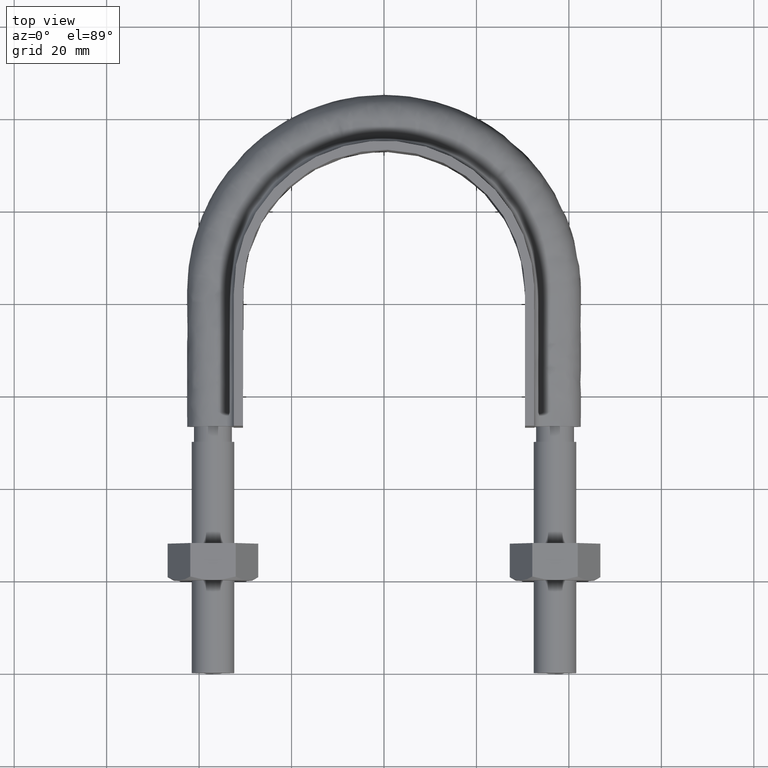
[diagram: clean part render]
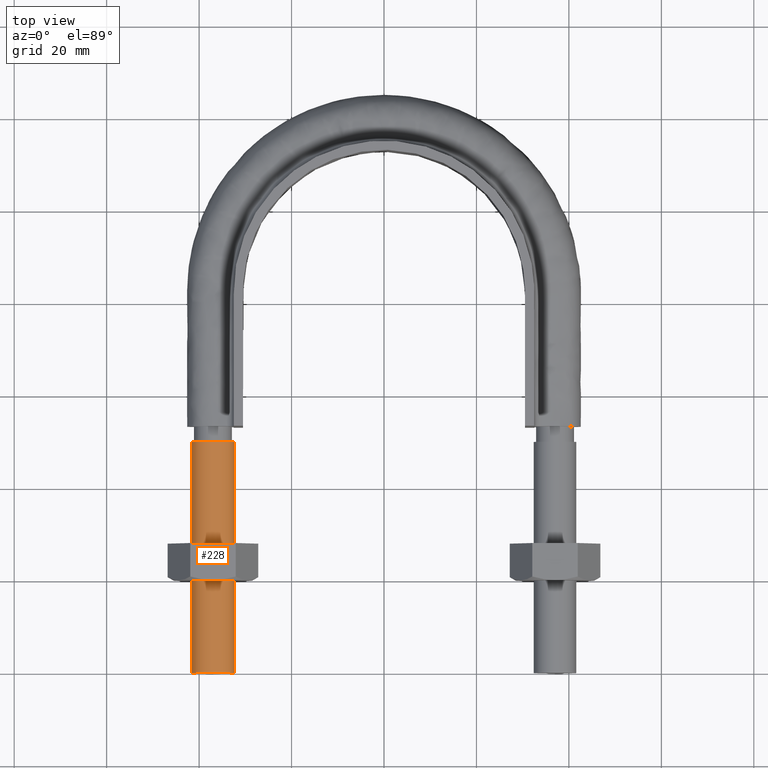
[diagram: same view with one face highlighted and labeled with its STEP entity id]
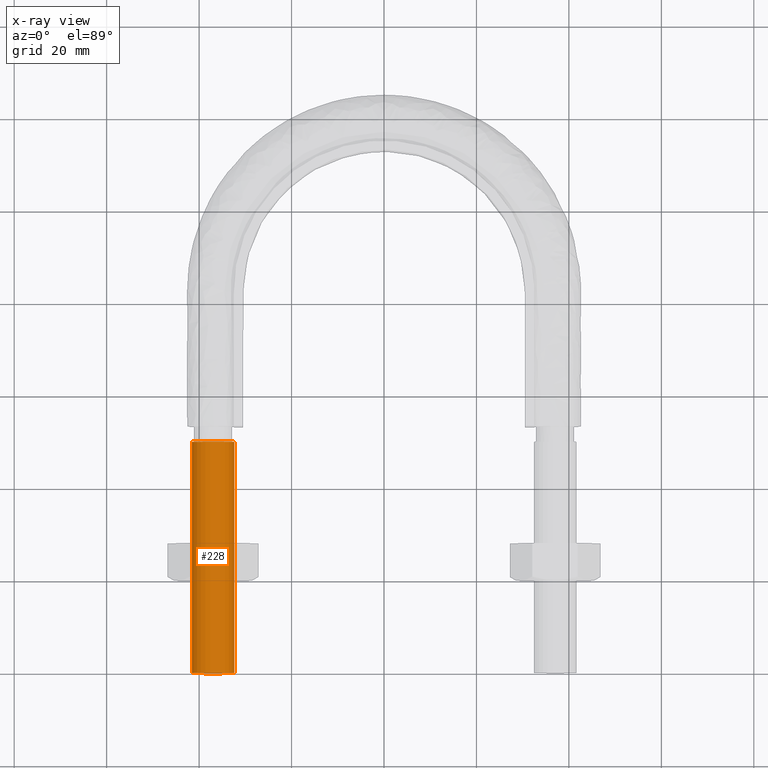
[diagram: x-ray of the same camera — body ghosted, the highlighted face saturated]
A machine part, top view. The second image highlights one B-rep face of the part: STEP entity #228.
The next image is the same camera in x-ray: the body ghosted, the highlighted face saturated — about 0% of this face is hidden behind the body in this view.
In plain terms, the highlighted cylindrical surface (bore or boss wall) has radius 4.6 mm, axis along (0, 1, -0).
Its self-contained STEP definition (entity closure, byte-faithful):
#228 = ADVANCED_FACE( '', ( #318, #319 ), #320, .T. );
#318 = FACE_OUTER_BOUND( '', #1166, .T. );
#319 = FACE_OUTER_BOUND( '', #1167, .T. );
#320 = CYLINDRICAL_SURFACE( '', #1168, 4.60000000000000 );
#1166 = EDGE_LOOP( '', ( #1538 ) );
#1167 = EDGE_LOOP( '', ( #1539 ) );
#1168 = AXIS2_PLACEMENT_3D( '', #1540, #1541, #1542 );
#1538 = ORIENTED_EDGE( '', *, *, #2026, .T. );
#1539 = ORIENTED_EDGE( '', *, *, #2025, .F. );
#1540 = CARTESIAN_POINT( '', ( -37.0000000000000, 50.0000000000000, -3.09825407517062E-015 ) );
#1541 = DIRECTION( '', ( 2.44921270764475E-016, 1.00000000000000, -6.12303176911189E-017 ) );
#1542 = DIRECTION( '', ( 1.00000000000000, -2.44921270764475E-016, 0.000000000000000 ) );
#2025 = EDGE_CURVE( '', #2195, #2195, #2196, .T. );
#2026 = EDGE_CURVE( '', #2197, #2197, #2198, .T. );
#2195 = VERTEX_POINT( '', #2650 );
#2196 = CIRCLE( '', #2651, 4.60000000000000 );
#2197 = VERTEX_POINT( '', #2652 );
#2198 = CIRCLE( '', #2653, 4.60000000000000 );
#2650 = CARTESIAN_POINT( '', ( -32.4000000000000, 7.93544917276900E-015, -3.67381906146716E-017 ) );
#2651 = AXIS2_PLACEMENT_3D( '', #3088, #3089, #3090 );
#2652 = CARTESIAN_POINT( '', ( -32.4000000000000, 50.0000000000000, -3.09825407517062E-015 ) );
#2653 = AXIS2_PLACEMENT_3D( '', #3091, #3092, #3093 );
#3088 = CARTESIAN_POINT( '', ( -37.0000000000000, 9.06208701828559E-015, -3.67381906146716E-017 ) );
#3089 = DIRECTION( '', ( -2.44921270764475E-016, -1.00000000000000, 6.12303176911189E-017 ) );
#3090 = DIRECTION( '', ( 1.00000000000000, -2.44921270764475E-016, 0.000000000000000 ) );
#3091 = CARTESIAN_POINT( '', ( -37.0000000000000, 50.0000000000000, -3.09825407517062E-015 ) );
#3092 = DIRECTION( '', ( -2.44921270764475E-016, -1.00000000000000, 6.12303176911189E-017 ) );
#3093 = DIRECTION( '', ( 1.00000000000000, -2.44921270764475E-016, 0.000000000000000 ) );